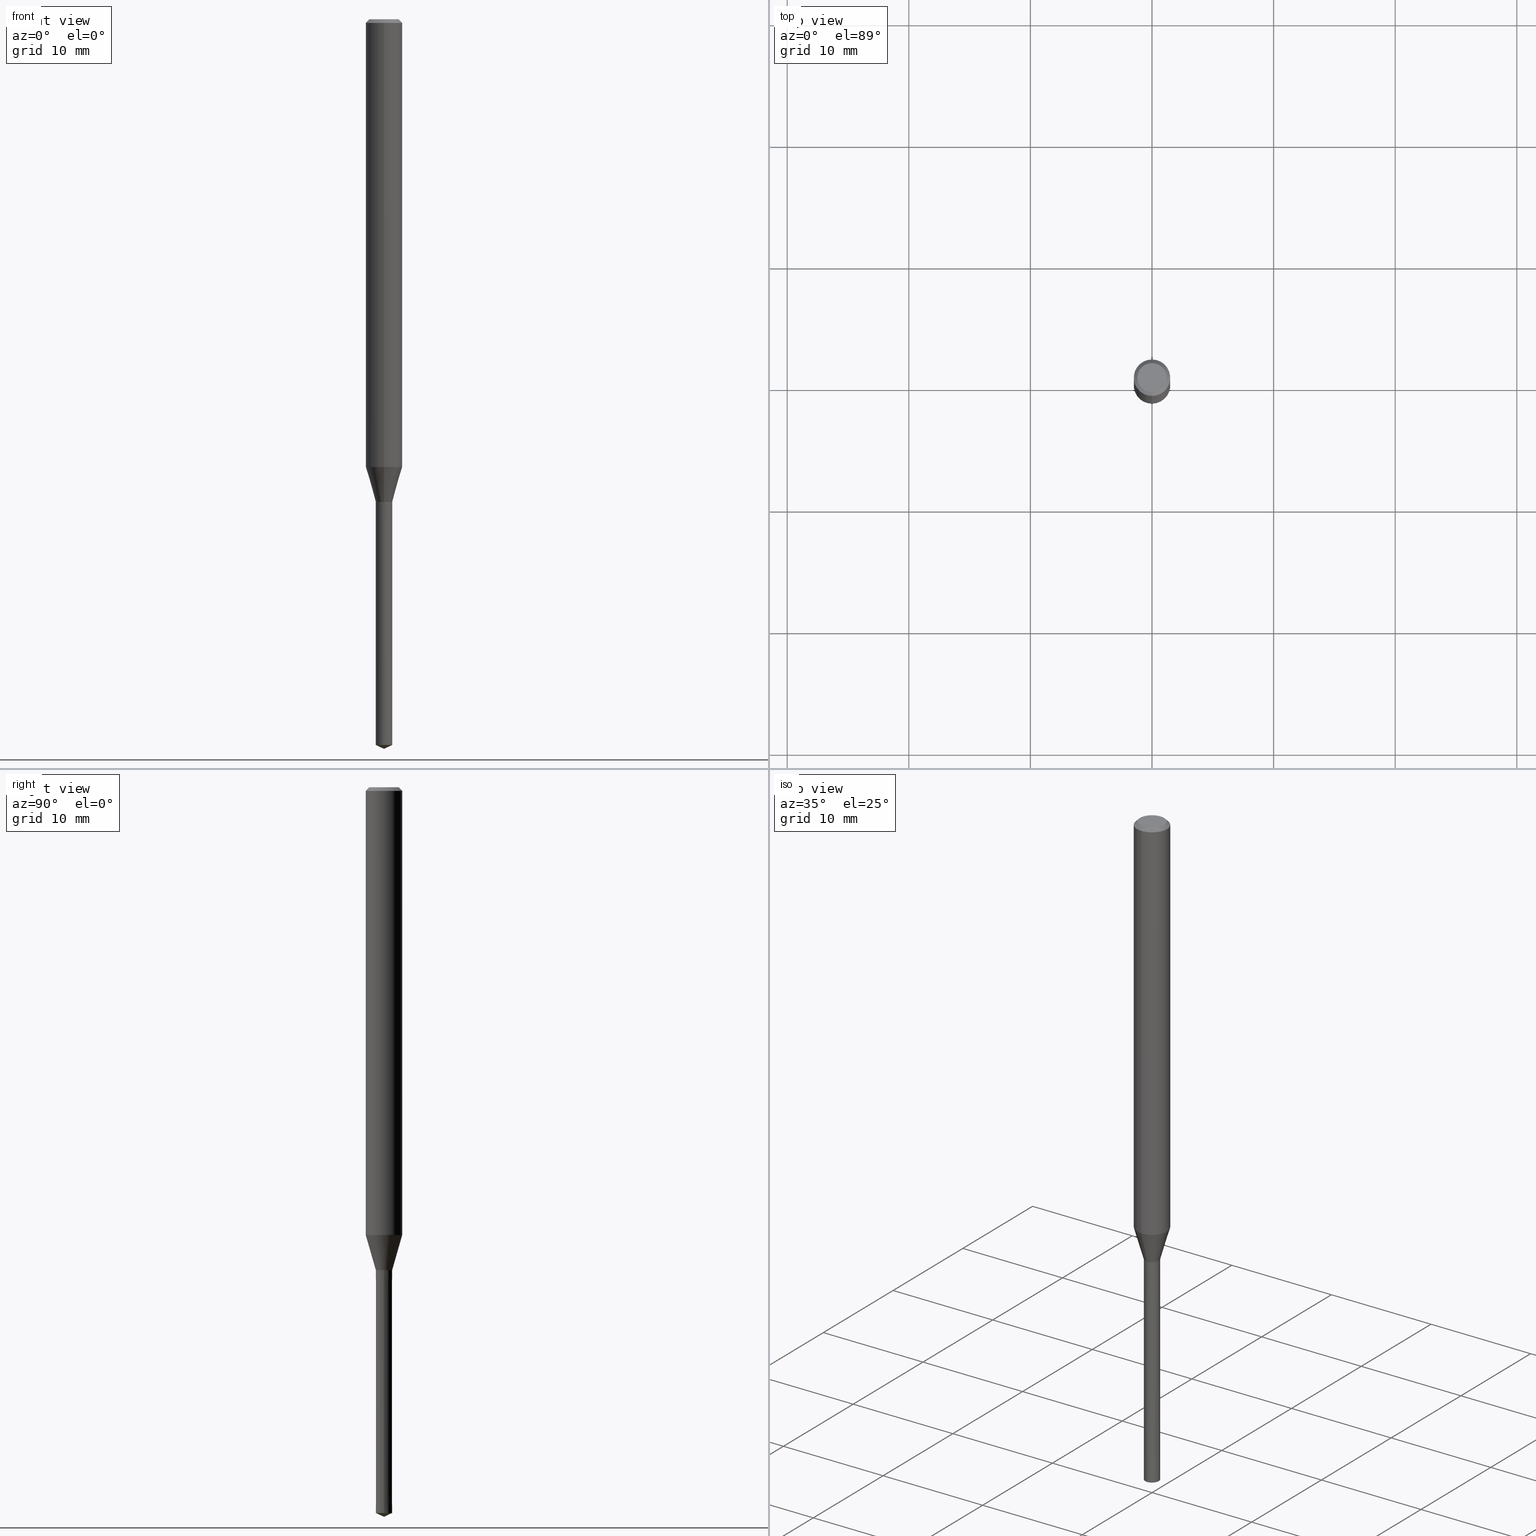
[diagram: canonical four-view strip — front | top / right | iso, engineering-drawing reading convention]
A machine part, canonical four-view strip (front | top / right | iso — engineering-drawing reading convention). The complete STEP part file that produces these views, byte-faithful:
ISO-10303-21;
HEADER;
FILE_DESCRIPTION(('no description'),'unknown implementation level');
FILE_NAME('UTDLX2135-203-Huellk.stp','  ',('CIMSOURCE GmbH'),('CADClick - KiM GmbH - www.kimweb.de'),'unknown preprocess','ACIS','unknown authorization');
FILE_SCHEMA(('automotive_design'));
ENDSEC;
DATA;
#1=MECHANICAL_DESIGN_GEOMETRIC_PRESENTATION_REPRESENTATION(' ',(#14,#15,#16,#17,#18,#19,#20,#21,#22,#23,#24,#25,#26,#27,#28,#29,#30,#31,#32,#33,#34,#35,#36,#37,#38,#39,#40,#41,#42,#43,#44,#45,#46,#47,#48,#49,#50,#51,#52,#53,#54,#55,#56,#57,#58,#59,#60,#61,#62,#63,#64,#65,#66,#67,#68,#69,#70,#71),#10);
#2=PRODUCT_DEFINITION_CONTEXT('',#72,'design');
#3=APPLICATION_PROTOCOL_DEFINITION('INTERNATIONAL STANDARD','automotive_design',1994,#72);
#4=PRODUCT_CATEGORY_RELATIONSHIP('NONE','NONE',#73,#74);
#5=SHAPE_DEFINITION_REPRESENTATION(#75,#76);
#6=PRODUCT_DEFINITION_CONTEXT('',#77,'design');
#7=APPLICATION_PROTOCOL_DEFINITION('INTERNATIONAL STANDARD','automotive_design',1994,#77);
#8=PRODUCT_CATEGORY_RELATIONSHIP('NONE','NONE',#78,#79);
#9=SHAPE_DEFINITION_REPRESENTATION(#80,#81);
#10= (GEOMETRIC_REPRESENTATION_CONTEXT(3)GLOBAL_UNCERTAINTY_ASSIGNED_CONTEXT((#84))GLOBAL_UNIT_ASSIGNED_CONTEXT((#86,#87,#88))REPRESENTATION_CONTEXT('NONE','WORKSPACE'));
#14=STYLED_ITEM('',(#90),#91);
#15=STYLED_ITEM('',(#92),#93);
#16=STYLED_ITEM('',(#94),#95);
#17=STYLED_ITEM('',(#96),#97);
#18=STYLED_ITEM('',(#98),#99);
#19=STYLED_ITEM('',(#100),#101);
#20=STYLED_ITEM('',(#102),#103);
#21=STYLED_ITEM('',(#104),#105);
#22=STYLED_ITEM('',(#106),#107);
#23=STYLED_ITEM('',(#108),#109);
#24=STYLED_ITEM('',(#110),#111);
#25=STYLED_ITEM('',(#112),#113);
#26=STYLED_ITEM('',(#114),#115);
#27=STYLED_ITEM('',(#116),#117);
#28=STYLED_ITEM('',(#118),#119);
#29=STYLED_ITEM('',(#120),#121);
#30=STYLED_ITEM('',(#122),#123);
#31=STYLED_ITEM('',(#124),#125);
#32=STYLED_ITEM('',(#126),#127);
#33=STYLED_ITEM('',(#128),#129);
#34=STYLED_ITEM('',(#130),#131);
#35=STYLED_ITEM('',(#132),#133);
#36=STYLED_ITEM('',(#134),#135);
#37=STYLED_ITEM('',(#136),#137);
#38=STYLED_ITEM('',(#138),#139);
#39=STYLED_ITEM('',(#140),#141);
#40=STYLED_ITEM('',(#142),#143);
#41=STYLED_ITEM('',(#144),#145);
#42=STYLED_ITEM('',(#146),#147);
#43=STYLED_ITEM('',(#148),#149);
#44=STYLED_ITEM('',(#150),#151);
#45=STYLED_ITEM('',(#152),#153);
#46=STYLED_ITEM('',(#154),#155);
#47=STYLED_ITEM('',(#156),#157);
#48=STYLED_ITEM('',(#158),#159);
#49=STYLED_ITEM('',(#160),#161);
#50=STYLED_ITEM('',(#162),#163);
#51=STYLED_ITEM('',(#164),#165);
#52=STYLED_ITEM('',(#166),#167);
#53=STYLED_ITEM('',(#168),#169);
#54=STYLED_ITEM('',(#170),#171);
#55=STYLED_ITEM('',(#172),#173);
#56=STYLED_ITEM('',(#174),#175);
#57=STYLED_ITEM('',(#176),#177);
#58=STYLED_ITEM('',(#178),#179);
#59=STYLED_ITEM('',(#180),#181);
#60=STYLED_ITEM('',(#182),#183);
#61=STYLED_ITEM('',(#184),#185);
#62=STYLED_ITEM('',(#186),#187);
#63=STYLED_ITEM('',(#188),#189);
#64=STYLED_ITEM('',(#190),#191);
#65=STYLED_ITEM('',(#192),#193);
#66=STYLED_ITEM('',(#194),#195);
#67=STYLED_ITEM('',(#196),#197);
#68=STYLED_ITEM('',(#198),#199);
#69=STYLED_ITEM('',(#200),#201);
#70=STYLED_ITEM('',(#202),#203);
#71=STYLED_ITEM('',(#204),#205);
#72=APPLICATION_CONTEXT(' ');
#73=PRODUCT_CATEGORY('part','NONE');
#74=PRODUCT_RELATED_PRODUCT_CATEGORY('detail',' ',(#206));
#75=PRODUCT_DEFINITION_SHAPE('NONE','NONE',#207);
#76=ADVANCED_BREP_SHAPE_REPRESENTATION('1',(#107,#208),#10);
#77=APPLICATION_CONTEXT(' ');
#78=PRODUCT_CATEGORY('part','NONE');
#79=PRODUCT_RELATED_PRODUCT_CATEGORY('detail',' ',(#209));
#80=PRODUCT_DEFINITION_SHAPE('NONE','NONE',#210);
#81=ADVANCED_BREP_SHAPE_REPRESENTATION('2',(#133,#211),#10);
#84=UNCERTAINTY_MEASURE_WITH_UNIT(LENGTH_MEASURE(1.0E-006),#86,'','');
#86= (CONVERSION_BASED_UNIT('MILLIMETRE',#214)LENGTH_UNIT()NAMED_UNIT(#217));
#87= (NAMED_UNIT(#219)PLANE_ANGLE_UNIT()SI_UNIT($,.RADIAN.));
#88= (NAMED_UNIT(#219)SOLID_ANGLE_UNIT()SI_UNIT($,.STERADIAN.));
#90=PRESENTATION_STYLE_ASSIGNMENT((#225));
#91=EDGE_CURVE('',#175,#119,#226,.T.);
#92=PRESENTATION_STYLE_ASSIGNMENT((#227));
#93=VERTEX_POINT('',#228);
#94=PRESENTATION_STYLE_ASSIGNMENT((#229));
#95=EDGE_CURVE('',#205,#111,#230,.T.);
#96=PRESENTATION_STYLE_ASSIGNMENT((#231));
#97=EDGE_CURVE('',#93,#183,#232,.T.);
#98=PRESENTATION_STYLE_ASSIGNMENT((#233));
#99=EDGE_CURVE('',#191,#113,#234,.T.);
#100=PRESENTATION_STYLE_ASSIGNMENT((#235));
#101=ADVANCED_FACE('',(#236),#237,.T.);
#102=PRESENTATION_STYLE_ASSIGNMENT((#238));
#103=EDGE_CURVE('',#185,#119,#239,.T.);
#104=PRESENTATION_STYLE_ASSIGNMENT((#240));
#105=ADVANCED_FACE('',(#241),#242,.T.);
#106=PRESENTATION_STYLE_ASSIGNMENT((#243));
#107=MANIFOLD_SOLID_BREP('1',#244);
#108=PRESENTATION_STYLE_ASSIGNMENT((#245));
#109=EDGE_CURVE('',#111,#205,#246,.T.);
#110=PRESENTATION_STYLE_ASSIGNMENT((#247));
#111=VERTEX_POINT('',#248);
#112=PRESENTATION_STYLE_ASSIGNMENT((#249));
#113=VERTEX_POINT('',#250);
#114=PRESENTATION_STYLE_ASSIGNMENT((#251));
#115=ADVANCED_FACE('',(#252),#253,.T.);
#116=PRESENTATION_STYLE_ASSIGNMENT((#254));
#117=ADVANCED_FACE('',(#255),#256,.T.);
#118=PRESENTATION_STYLE_ASSIGNMENT((#257));
#119=VERTEX_POINT('',#258);
#120=PRESENTATION_STYLE_ASSIGNMENT((#259));
#121=ADVANCED_FACE('',(#260),#261,.T.);
#122=PRESENTATION_STYLE_ASSIGNMENT((#262));
#123=ADVANCED_FACE('',(#263),#264,.T.);
#124=PRESENTATION_STYLE_ASSIGNMENT((#265));
#125=EDGE_CURVE('',#189,#185,#266,.T.);
#126=PRESENTATION_STYLE_ASSIGNMENT((#267));
#127=EDGE_CURVE('',#119,#175,#268,.T.);
#128=PRESENTATION_STYLE_ASSIGNMENT((#269));
#129=ADVANCED_FACE('',(#270),#271,.T.);
#130=PRESENTATION_STYLE_ASSIGNMENT((#272));
#131=VERTEX_POINT('',#273);
#132=PRESENTATION_STYLE_ASSIGNMENT((#274));
#133=MANIFOLD_SOLID_BREP('2',#275);
#134=PRESENTATION_STYLE_ASSIGNMENT((#276));
#135=ADVANCED_FACE('',(#277),#278,.T.);
#136=PRESENTATION_STYLE_ASSIGNMENT((#279));
#137=EDGE_CURVE('',#205,#175,#280,.T.);
#138=PRESENTATION_STYLE_ASSIGNMENT((#281));
#139=EDGE_CURVE('',#113,#185,#282,.T.);
#140=PRESENTATION_STYLE_ASSIGNMENT((#283));
#141=ADVANCED_FACE('',(#284),#285,.T.);
#142=PRESENTATION_STYLE_ASSIGNMENT((#286));
#143=EDGE_CURVE('',#171,#113,#287,.T.);
#144=PRESENTATION_STYLE_ASSIGNMENT((#288));
#145=EDGE_CURVE('',#113,#191,#289,.T.);
#146=PRESENTATION_STYLE_ASSIGNMENT((#290));
#147=EDGE_CURVE('',#159,#177,#291,.T.);
#148=PRESENTATION_STYLE_ASSIGNMENT((#292));
#149=EDGE_CURVE('',#183,#159,#293,.T.);
#150=PRESENTATION_STYLE_ASSIGNMENT((#294));
#151=EDGE_CURVE('',#159,#183,#295,.T.);
#152=PRESENTATION_STYLE_ASSIGNMENT((#296));
#153=ADVANCED_FACE('',(#297),#298,.T.);
#154=PRESENTATION_STYLE_ASSIGNMENT((#299));
#155=EDGE_CURVE('',#157,#171,#300,.T.);
#156=PRESENTATION_STYLE_ASSIGNMENT((#301));
#157=VERTEX_POINT('',#302);
#158=PRESENTATION_STYLE_ASSIGNMENT((#303));
#159=VERTEX_POINT('',#304);
#160=PRESENTATION_STYLE_ASSIGNMENT((#305));
#161=EDGE_CURVE('',#93,#177,#306,.T.);
#162=PRESENTATION_STYLE_ASSIGNMENT((#307));
#163=EDGE_CURVE('',#189,#191,#308,.T.);
#164=PRESENTATION_STYLE_ASSIGNMENT((#309));
#165=EDGE_CURVE('',#175,#189,#310,.T.);
#166=PRESENTATION_STYLE_ASSIGNMENT((#311));
#167=EDGE_CURVE('',#119,#111,#312,.T.);
#168=PRESENTATION_STYLE_ASSIGNMENT((#313));
#169=ADVANCED_FACE('',(#314),#315,.T.);
#170=PRESENTATION_STYLE_ASSIGNMENT((#316));
#171=VERTEX_POINT('',#317);
#172=PRESENTATION_STYLE_ASSIGNMENT((#318));
#173=EDGE_CURVE('',#131,#93,#319,.T.);
#174=PRESENTATION_STYLE_ASSIGNMENT((#320));
#175=VERTEX_POINT('',#321);
#176=PRESENTATION_STYLE_ASSIGNMENT((#322));
#177=VERTEX_POINT('',#323);
#178=PRESENTATION_STYLE_ASSIGNMENT((#324));
#179=EDGE_CURVE('',#191,#157,#325,.T.);
#180=PRESENTATION_STYLE_ASSIGNMENT((#326));
#181=EDGE_CURVE('',#177,#93,#327,.T.);
#182=PRESENTATION_STYLE_ASSIGNMENT((#328));
#183=VERTEX_POINT('',#329);
#184=PRESENTATION_STYLE_ASSIGNMENT((#330));
#185=VERTEX_POINT('',#331);
#186=PRESENTATION_STYLE_ASSIGNMENT((#332));
#187=EDGE_CURVE('',#177,#131,#333,.T.);
#188=PRESENTATION_STYLE_ASSIGNMENT((#334));
#189=VERTEX_POINT('',#335);
#190=PRESENTATION_STYLE_ASSIGNMENT((#336));
#191=VERTEX_POINT('',#337);
#192=PRESENTATION_STYLE_ASSIGNMENT((#338));
#193=ADVANCED_FACE('',(#339),#340,.T.);
#194=PRESENTATION_STYLE_ASSIGNMENT((#341));
#195=EDGE_CURVE('',#185,#189,#342,.T.);
#196=PRESENTATION_STYLE_ASSIGNMENT((#343));
#197=ADVANCED_FACE('',(#344),#345,.T.);
#198=PRESENTATION_STYLE_ASSIGNMENT((#346));
#199=ADVANCED_FACE('',(#347),#348,.T.);
#200=PRESENTATION_STYLE_ASSIGNMENT((#349));
#201=ADVANCED_FACE('',(#350),#351,.T.);
#202=PRESENTATION_STYLE_ASSIGNMENT((#352));
#203=EDGE_CURVE('',#171,#157,#353,.T.);
#204=PRESENTATION_STYLE_ASSIGNMENT((#354));
#205=VERTEX_POINT('',#355);
#206=PRODUCT('1','1','PART-1-DESC',(#356));
#207=PRODUCT_DEFINITION('NONE','NONE',#357,#2);
#208=AXIS2_PLACEMENT_3D('',#358,#359,#360);
#209=PRODUCT('2','2','PART-2-DESC',(#361));
#210=PRODUCT_DEFINITION('NONE','NONE',#362,#6);
#211=AXIS2_PLACEMENT_3D('',#363,#364,#365);
#214=LENGTH_MEASURE_WITH_UNIT(LENGTH_MEASURE(1.0),#366);
#217=DIMENSIONAL_EXPONENTS(1.0,0.0,0.0,0.0,0.0,0.0,0.0);
#219=DIMENSIONAL_EXPONENTS(0.0,0.0,0.0,0.0,0.0,0.0,0.0);
#225=CURVE_STYLE('',#367,POSITIVE_LENGTH_MEASURE(1.0E-006),#368);
#226=CIRCLE('',#369,0.675);
#227=POINT_STYLE(' ',#370,POSITIVE_LENGTH_MEASURE(1.0E-006),#371);
#228=CARTESIAN_POINT('',(0.675,8.26609288830105E-017,-59.68524233));
#229=CURVE_STYLE('',#372,POSITIVE_LENGTH_MEASURE(1.0E-006),#373);
#230=CIRCLE('',#374,0.6755);
#231=CURVE_STYLE('',#375,POSITIVE_LENGTH_MEASURE(1.0E-006),#376);
#232=LINE('',#377,#378);
#233=CURVE_STYLE('',#379,POSITIVE_LENGTH_MEASURE(1.0E-006),#380);
#234=CIRCLE('',#381,1.5);
#235=SURFACE_STYLE_USAGE(.BOTH.,#382);
#236=FACE_OUTER_BOUND('',#383,.T.);
#237=CONICAL_SURFACE('',#384,1.35,0.785398163397453);
#238=CURVE_STYLE('',#385,POSITIVE_LENGTH_MEASURE(1.0E-006),#386);
#239=LINE('',#387,#388);
#240=SURFACE_STYLE_USAGE(.BOTH.,#389);
#241=FACE_OUTER_BOUND('',#390,.T.);
#242=PLANE('',#391);
#243=SURFACE_STYLE_USAGE(.BOTH.,#392);
#244=CLOSED_SHELL('',(#197,#169,#199,#123,#105,#101,#141,#153,#201,#121));
#245=CURVE_STYLE('',#393,POSITIVE_LENGTH_MEASURE(1.0E-006),#394);
#246=CIRCLE('',#395,0.6755);
#247=POINT_STYLE(' ',#396,POSITIVE_LENGTH_MEASURE(1.0E-006),#397);
#248=CARTESIAN_POINT('',(0.0,0.6755,-39.7));
#249=POINT_STYLE(' ',#398,POSITIVE_LENGTH_MEASURE(1.0E-006),#399);
#250=CARTESIAN_POINT('',(0.0,1.5,-0.299999999999997));
#251=SURFACE_STYLE_USAGE(.BOTH.,#400);
#252=FACE_OUTER_BOUND('',#401,.T.);
#253=CONICAL_SURFACE('',#402,0.6755,5.00369213769467E-005);
#254=SURFACE_STYLE_USAGE(.BOTH.,#403);
#255=FACE_OUTER_BOUND('',#404,.T.);
#256=CONICAL_SURFACE('',#405,0.3375,1.13446401288928);
#257=POINT_STYLE(' ',#406,POSITIVE_LENGTH_MEASURE(1.0E-006),#407);
#258=CARTESIAN_POINT('',(0.0,0.675,-39.6991339745962));
#259=SURFACE_STYLE_USAGE(.BOTH.,#408);
#260=FACE_OUTER_BOUND('',#409,.T.);
#261=PLANE('',#410);
#262=SURFACE_STYLE_USAGE(.BOTH.,#411);
#263=FACE_OUTER_BOUND('',#412,.T.);
#264=CONICAL_SURFACE('',#413,1.35,0.785398163397453);
#265=CURVE_STYLE('',#414,POSITIVE_LENGTH_MEASURE(1.0E-006),#415);
#266=CIRCLE('',#416,1.5);
#267=CURVE_STYLE('',#417,POSITIVE_LENGTH_MEASURE(1.0E-006),#418);
#268=CIRCLE('',#419,0.675);
#269=SURFACE_STYLE_USAGE(.BOTH.,#420);
#270=FACE_OUTER_BOUND('',#421,.T.);
#271=CONICAL_SURFACE('',#422,0.6755,5.00369213769467E-005);
#272=POINT_STYLE(' ',#423,POSITIVE_LENGTH_MEASURE(1.0E-006),#424);
#273=CARTESIAN_POINT('',(0.0,0.0,-60.0));
#274=SURFACE_STYLE_USAGE(.BOTH.,#425);
#275=CLOSED_SHELL('',(#135,#129,#193,#115,#117));
#276=SURFACE_STYLE_USAGE(.BOTH.,#426);
#277=FACE_OUTER_BOUND('',#427,.T.);
#278=CONICAL_SURFACE('',#428,0.3375,1.13446401288928);
#279=CURVE_STYLE('',#429,POSITIVE_LENGTH_MEASURE(1.0E-006),#430);
#280=LINE('',#431,#432);
#281=CURVE_STYLE('',#433,POSITIVE_LENGTH_MEASURE(1.0E-006),#434);
#282=LINE('',#435,#436);
#283=SURFACE_STYLE_USAGE(.BOTH.,#437);
#284=FACE_OUTER_BOUND('',#438,.T.);
#285=CYLINDRICAL_SURFACE('',#439,1.5);
#286=CURVE_STYLE('',#440,POSITIVE_LENGTH_MEASURE(1.0E-006),#441);
#287=LINE('',#442,#443);
#288=CURVE_STYLE('',#444,POSITIVE_LENGTH_MEASURE(1.0E-006),#445);
#289=CIRCLE('',#446,1.5);
#290=CURVE_STYLE('',#447,POSITIVE_LENGTH_MEASURE(1.0E-006),#448);
#291=LINE('',#449,#450);
#292=CURVE_STYLE('',#451,POSITIVE_LENGTH_MEASURE(1.0E-006),#452);
#293=CIRCLE('',#453,0.676);
#294=CURVE_STYLE('',#454,POSITIVE_LENGTH_MEASURE(1.0E-006),#455);
#295=CIRCLE('',#456,0.676);
#296=SURFACE_STYLE_USAGE(.BOTH.,#457);
#297=FACE_OUTER_BOUND('',#458,.T.);
#298=CONICAL_SURFACE('',#459,1.0875,0.279343230021156);
#299=CURVE_STYLE('',#460,POSITIVE_LENGTH_MEASURE(1.0E-006),#461);
#300=CIRCLE('',#462,1.2);
#301=POINT_STYLE(' ',#463,POSITIVE_LENGTH_MEASURE(1.0E-006),#464);
#302=CARTESIAN_POINT('',(1.46952762458685E-016,-1.2,0.0));
#303=POINT_STYLE(' ',#465,POSITIVE_LENGTH_MEASURE(1.0E-006),#466);
#304=CARTESIAN_POINT('',(-0.676,0.0,-39.7));
#305=CURVE_STYLE('',#467,POSITIVE_LENGTH_MEASURE(1.0E-006),#468);
#306=CIRCLE('',#469,0.675);
#307=CURVE_STYLE('',#470,POSITIVE_LENGTH_MEASURE(1.0E-006),#471);
#308=LINE('',#472,#473);
#309=CURVE_STYLE('',#474,POSITIVE_LENGTH_MEASURE(1.0E-006),#475);
#310=LINE('',#476,#477);
#311=CURVE_STYLE('',#478,POSITIVE_LENGTH_MEASURE(1.0E-006),#479);
#312=LINE('',#480,#481);
#313=SURFACE_STYLE_USAGE(.BOTH.,#482);
#314=FACE_OUTER_BOUND('',#483,.T.);
#315=CONICAL_SURFACE('',#484,1.0875,0.279343230021156);
#316=POINT_STYLE(' ',#485,POSITIVE_LENGTH_MEASURE(1.0E-006),#486);
#317=CARTESIAN_POINT('',(0.0,1.2,0.0));
#318=CURVE_STYLE('',#487,POSITIVE_LENGTH_MEASURE(1.0E-006),#488);
#319=LINE('',#489,#490);
#320=POINT_STYLE(' ',#491,POSITIVE_LENGTH_MEASURE(1.0E-006),#492);
#321=CARTESIAN_POINT('',(8.26609288830105E-017,-0.675,-39.6991339745962));
#322=POINT_STYLE(' ',#493,POSITIVE_LENGTH_MEASURE(1.0E-006),#494);
#323=CARTESIAN_POINT('',(-0.675,0.0,-59.68524233));
#324=CURVE_STYLE('',#495,POSITIVE_LENGTH_MEASURE(1.0E-006),#496);
#325=LINE('',#497,#498);
#326=CURVE_STYLE('',#499,POSITIVE_LENGTH_MEASURE(1.0E-006),#500);
#327=CIRCLE('',#501,0.675);
#328=POINT_STYLE(' ',#502,POSITIVE_LENGTH_MEASURE(1.0E-006),#503);
#329=CARTESIAN_POINT('',(0.676,8.27833895183927E-017,-39.7));
#330=POINT_STYLE(' ',#504,POSITIVE_LENGTH_MEASURE(1.0E-006),#505);
#331=CARTESIAN_POINT('',(0.0,1.5,-36.823));
#332=CURVE_STYLE('',#506,POSITIVE_LENGTH_MEASURE(1.0E-006),#507);
#333=LINE('',#508,#509);
#334=POINT_STYLE(' ',#510,POSITIVE_LENGTH_MEASURE(1.0E-006),#511);
#335=CARTESIAN_POINT('',(1.83690953073357E-016,-1.5,-36.823));
#336=POINT_STYLE(' ',#512,POSITIVE_LENGTH_MEASURE(1.0E-006),#513);
#337=CARTESIAN_POINT('',(1.83690953073357E-016,-1.5,-0.299999999999997));
#338=SURFACE_STYLE_USAGE(.BOTH.,#514);
#339=FACE_OUTER_BOUND('',#515,.T.);
#340=PLANE('',#516);
#341=CURVE_STYLE('',#517,POSITIVE_LENGTH_MEASURE(1.0E-006),#518);
#342=CIRCLE('',#519,1.5);
#343=SURFACE_STYLE_USAGE(.BOTH.,#520);
#344=FACE_OUTER_BOUND('',#521,.T.);
#345=CONICAL_SURFACE('',#522,0.67525,0.52359877559836);
#346=SURFACE_STYLE_USAGE(.BOTH.,#523);
#347=FACE_OUTER_BOUND('',#524,.T.);
#348=CYLINDRICAL_SURFACE('',#525,1.5);
#349=SURFACE_STYLE_USAGE(.BOTH.,#526);
#350=FACE_OUTER_BOUND('',#527,.T.);
#351=CONICAL_SURFACE('',#528,0.67525,0.52359877559836);
#352=CURVE_STYLE('',#529,POSITIVE_LENGTH_MEASURE(1.0E-006),#530);
#353=CIRCLE('',#531,1.2);
#354=POINT_STYLE(' ',#532,POSITIVE_LENGTH_MEASURE(1.0E-006),#533);
#355=CARTESIAN_POINT('',(8.27221592007016E-017,-0.6755,-39.7));
#356=PRODUCT_CONTEXT('',#72,'mechanical');
#357=PRODUCT_DEFINITION_FORMATION_WITH_SPECIFIED_SOURCE(' ','NONE',#206,.NOT_KNOWN.);
#358=CARTESIAN_POINT('',(0.0,0.0,0.0));
#359=DIRECTION('',(0.0,0.0,1.0));
#360=DIRECTION('',(1.0,0.0,0.0));
#361=PRODUCT_CONTEXT('',#77,'mechanical');
#362=PRODUCT_DEFINITION_FORMATION_WITH_SPECIFIED_SOURCE(' ','NONE',#209,.NOT_KNOWN.);
#363=CARTESIAN_POINT('',(0.0,0.0,0.0));
#364=DIRECTION('',(0.0,0.0,1.0));
#365=DIRECTION('',(1.0,0.0,0.0));
#366= (NAMED_UNIT(#217)LENGTH_UNIT()SI_UNIT(.MILLI.,.METRE.));
#367=DRAUGHTING_PRE_DEFINED_CURVE_FONT('continuous');
#368=COLOUR_RGB('',0.498039215803146,0.498039215803146,0.498039215803146);
#369=AXIS2_PLACEMENT_3D('',#535,#536,#537);
#370=PRE_DEFINED_MARKER('');
#371=COLOUR_RGB('',0.800000011920929,0.800000011920929,0.800000011920929);
#372=DRAUGHTING_PRE_DEFINED_CURVE_FONT('continuous');
#373=COLOUR_RGB('',0.498039215803146,0.498039215803146,0.498039215803146);
#374=AXIS2_PLACEMENT_3D('',#538,#539,#540);
#375=DRAUGHTING_PRE_DEFINED_CURVE_FONT('continuous');
#376=COLOUR_RGB('',0.800000011920929,0.800000011920929,0.800000011920929);
#377=CARTESIAN_POINT('',(0.6755,8.27221592007016E-017,-49.692621165));
#378=VECTOR('',#541,1.0);
#379=DRAUGHTING_PRE_DEFINED_CURVE_FONT('continuous');
#380=COLOUR_RGB('',0.498039215803146,0.498039215803146,0.498039215803146);
#381=AXIS2_PLACEMENT_3D('',#542,#543,#544);
#382=SURFACE_SIDE_STYLE('',(#545));
#383=EDGE_LOOP('',(#546,#547,#548,#549));
#384=AXIS2_PLACEMENT_3D('',#550,#551,#552);
#385=DRAUGHTING_PRE_DEFINED_CURVE_FONT('continuous');
#386=COLOUR_RGB('',0.498039215803146,0.498039215803146,0.498039215803146);
#387=CARTESIAN_POINT('',(-1.33175940978184E-016,1.0875,-38.2610669872981));
#388=VECTOR('',#553,1.0);
#389=SURFACE_SIDE_STYLE('',(#554));
#390=EDGE_LOOP('',(#555,#556));
#391=AXIS2_PLACEMENT_3D('',#557,#558,#559);
#392=SURFACE_SIDE_STYLE('',(#560));
#393=DRAUGHTING_PRE_DEFINED_CURVE_FONT('continuous');
#394=COLOUR_RGB('',0.498039215803146,0.498039215803146,0.498039215803146);
#395=AXIS2_PLACEMENT_3D('',#561,#562,#563);
#396=PRE_DEFINED_MARKER('');
#397=COLOUR_RGB('',0.498039215803146,0.498039215803146,0.498039215803146);
#398=PRE_DEFINED_MARKER('');
#399=COLOUR_RGB('',0.498039215803146,0.498039215803146,0.498039215803146);
#400=SURFACE_SIDE_STYLE('',(#564));
#401=EDGE_LOOP('',(#565,#566,#567,#568));
#402=AXIS2_PLACEMENT_3D('',#569,#570,#571);
#403=SURFACE_SIDE_STYLE('',(#572));
#404=EDGE_LOOP('',(#573,#574,#575));
#405=AXIS2_PLACEMENT_3D('',#576,#577,#578);
#406=PRE_DEFINED_MARKER('');
#407=COLOUR_RGB('',0.498039215803146,0.498039215803146,0.498039215803146);
#408=SURFACE_SIDE_STYLE('',(#579));
#409=EDGE_LOOP('',(#580,#581));
#410=AXIS2_PLACEMENT_3D('',#582,#583,#584);
#411=SURFACE_SIDE_STYLE('',(#585));
#412=EDGE_LOOP('',(#586,#587,#588,#589));
#413=AXIS2_PLACEMENT_3D('',#590,#591,#592);
#414=DRAUGHTING_PRE_DEFINED_CURVE_FONT('continuous');
#415=COLOUR_RGB('',0.498039215803146,0.498039215803146,0.498039215803146);
#416=AXIS2_PLACEMENT_3D('',#593,#594,#595);
#417=DRAUGHTING_PRE_DEFINED_CURVE_FONT('continuous');
#418=COLOUR_RGB('',0.498039215803146,0.498039215803146,0.498039215803146);
#419=AXIS2_PLACEMENT_3D('',#596,#597,#598);
#420=SURFACE_SIDE_STYLE('',(#599));
#421=EDGE_LOOP('',(#600,#601,#602,#603));
#422=AXIS2_PLACEMENT_3D('',#604,#605,#606);
#423=PRE_DEFINED_MARKER('');
#424=COLOUR_RGB('',0.800000011920929,0.800000011920929,0.800000011920929);
#425=SURFACE_SIDE_STYLE('',(#607));
#426=SURFACE_SIDE_STYLE('',(#608));
#427=EDGE_LOOP('',(#609,#610,#611));
#428=AXIS2_PLACEMENT_3D('',#612,#613,#614);
#429=DRAUGHTING_PRE_DEFINED_CURVE_FONT('continuous');
#430=COLOUR_RGB('',0.498039215803146,0.498039215803146,0.498039215803146);
#431=CARTESIAN_POINT('',(8.2691544041856E-017,-0.67525,-39.6995669872981));
#432=VECTOR('',#615,1.0);
#433=DRAUGHTING_PRE_DEFINED_CURVE_FONT('continuous');
#434=COLOUR_RGB('',0.498039215803146,0.498039215803146,0.498039215803146);
#435=CARTESIAN_POINT('',(-1.83690953073357E-016,1.5,-18.5615));
#436=VECTOR('',#616,1.0);
#437=SURFACE_SIDE_STYLE('',(#617));
#438=EDGE_LOOP('',(#618,#619,#620,#621));
#439=AXIS2_PLACEMENT_3D('',#622,#623,#624);
#440=DRAUGHTING_PRE_DEFINED_CURVE_FONT('continuous');
#441=COLOUR_RGB('',0.498039215803146,0.498039215803146,0.498039215803146);
#442=CARTESIAN_POINT('',(-1.65321857766021E-016,1.35,-0.149999999999999));
#443=VECTOR('',#625,1.0);
#444=DRAUGHTING_PRE_DEFINED_CURVE_FONT('continuous');
#445=COLOUR_RGB('',0.498039215803146,0.498039215803146,0.498039215803146);
#446=AXIS2_PLACEMENT_3D('',#626,#627,#628);
#447=DRAUGHTING_PRE_DEFINED_CURVE_FONT('continuous');
#448=COLOUR_RGB('',0.800000011920929,0.800000011920929,0.800000011920929);
#449=CARTESIAN_POINT('',(-0.6755,-8.27221592007016E-017,-49.692621165));
#450=VECTOR('',#629,1.0);
#451=DRAUGHTING_PRE_DEFINED_CURVE_FONT('continuous');
#452=COLOUR_RGB('',0.800000011920929,0.800000011920929,0.800000011920929);
#453=AXIS2_PLACEMENT_3D('',#630,#631,#632);
#454=DRAUGHTING_PRE_DEFINED_CURVE_FONT('continuous');
#455=COLOUR_RGB('',0.800000011920929,0.800000011920929,0.800000011920929);
#456=AXIS2_PLACEMENT_3D('',#633,#634,#635);
#457=SURFACE_SIDE_STYLE('',(#636));
#458=EDGE_LOOP('',(#637,#638,#639,#640));
#459=AXIS2_PLACEMENT_3D('',#641,#642,#643);
#460=DRAUGHTING_PRE_DEFINED_CURVE_FONT('continuous');
#461=COLOUR_RGB('',0.498039215803146,0.498039215803146,0.498039215803146);
#462=AXIS2_PLACEMENT_3D('',#644,#645,#646);
#463=PRE_DEFINED_MARKER('');
#464=COLOUR_RGB('',0.498039215803146,0.498039215803146,0.498039215803146);
#465=PRE_DEFINED_MARKER('');
#466=COLOUR_RGB('',0.800000011920929,0.800000011920929,0.800000011920929);
#467=DRAUGHTING_PRE_DEFINED_CURVE_FONT('continuous');
#468=COLOUR_RGB('',0.800000011920929,0.800000011920929,0.800000011920929);
#469=AXIS2_PLACEMENT_3D('',#647,#648,#649);
#470=DRAUGHTING_PRE_DEFINED_CURVE_FONT('continuous');
#471=COLOUR_RGB('',0.498039215803146,0.498039215803146,0.498039215803146);
#472=CARTESIAN_POINT('',(1.83690953073357E-016,-1.5,-18.5615));
#473=VECTOR('',#650,1.0);
#474=DRAUGHTING_PRE_DEFINED_CURVE_FONT('continuous');
#475=COLOUR_RGB('',0.498039215803146,0.498039215803146,0.498039215803146);
#476=CARTESIAN_POINT('',(1.33175940978184E-016,-1.0875,-38.2610669872981));
#477=VECTOR('',#651,1.0);
#478=DRAUGHTING_PRE_DEFINED_CURVE_FONT('continuous');
#479=COLOUR_RGB('',0.498039215803146,0.498039215803146,0.498039215803146);
#480=CARTESIAN_POINT('',(-8.2691544041856E-017,0.67525,-39.6995669872981));
#481=VECTOR('',#652,1.0);
#482=SURFACE_SIDE_STYLE('',(#653));
#483=EDGE_LOOP('',(#654,#655,#656,#657));
#484=AXIS2_PLACEMENT_3D('',#658,#659,#660);
#485=PRE_DEFINED_MARKER('');
#486=COLOUR_RGB('',0.498039215803146,0.498039215803146,0.498039215803146);
#487=DRAUGHTING_PRE_DEFINED_CURVE_FONT('continuous');
#488=COLOUR_RGB('',0.800000011920929,0.800000011920929,0.800000011920929);
#489=CARTESIAN_POINT('',(0.3375,4.13304644415052E-017,-59.842621165));
#490=VECTOR('',#661,1.0);
#491=PRE_DEFINED_MARKER('');
#492=COLOUR_RGB('',0.498039215803146,0.498039215803146,0.498039215803146);
#493=PRE_DEFINED_MARKER('');
#494=COLOUR_RGB('',0.800000011920929,0.800000011920929,0.800000011920929);
#495=DRAUGHTING_PRE_DEFINED_CURVE_FONT('continuous');
#496=COLOUR_RGB('',0.498039215803146,0.498039215803146,0.498039215803146);
#497=CARTESIAN_POINT('',(1.65321857766021E-016,-1.35,-0.149999999999999));
#498=VECTOR('',#662,1.0);
#499=DRAUGHTING_PRE_DEFINED_CURVE_FONT('continuous');
#500=COLOUR_RGB('',0.800000011920929,0.800000011920929,0.800000011920929);
#501=AXIS2_PLACEMENT_3D('',#663,#664,#665);
#502=PRE_DEFINED_MARKER('');
#503=COLOUR_RGB('',0.800000011920929,0.800000011920929,0.800000011920929);
#504=PRE_DEFINED_MARKER('');
#505=COLOUR_RGB('',0.498039215803146,0.498039215803146,0.498039215803146);
#506=DRAUGHTING_PRE_DEFINED_CURVE_FONT('continuous');
#507=COLOUR_RGB('',0.800000011920929,0.800000011920929,0.800000011920929);
#508=CARTESIAN_POINT('',(-0.3375,-4.13304644415052E-017,-59.842621165));
#509=VECTOR('',#666,1.0);
#510=PRE_DEFINED_MARKER('');
#511=COLOUR_RGB('',0.498039215803146,0.498039215803146,0.498039215803146);
#512=PRE_DEFINED_MARKER('');
#513=COLOUR_RGB('',0.498039215803146,0.498039215803146,0.498039215803146);
#514=SURFACE_SIDE_STYLE('',(#667));
#515=EDGE_LOOP('',(#668,#669));
#516=AXIS2_PLACEMENT_3D('',#670,#671,#672);
#517=DRAUGHTING_PRE_DEFINED_CURVE_FONT('continuous');
#518=COLOUR_RGB('',0.498039215803146,0.498039215803146,0.498039215803146);
#519=AXIS2_PLACEMENT_3D('',#673,#674,#675);
#520=SURFACE_SIDE_STYLE('',(#676));
#521=EDGE_LOOP('',(#677,#678,#679,#680));
#522=AXIS2_PLACEMENT_3D('',#681,#682,#683);
#523=SURFACE_SIDE_STYLE('',(#684));
#524=EDGE_LOOP('',(#685,#686,#687,#688));
#525=AXIS2_PLACEMENT_3D('',#689,#690,#691);
#526=SURFACE_SIDE_STYLE('',(#692));
#527=EDGE_LOOP('',(#693,#694,#695,#696));
#528=AXIS2_PLACEMENT_3D('',#697,#698,#699);
#529=DRAUGHTING_PRE_DEFINED_CURVE_FONT('continuous');
#530=COLOUR_RGB('',0.498039215803146,0.498039215803146,0.498039215803146);
#531=AXIS2_PLACEMENT_3D('',#700,#701,#702);
#532=PRE_DEFINED_MARKER('');
#533=COLOUR_RGB('',0.498039215803146,0.498039215803146,0.498039215803146);
#535=CARTESIAN_POINT('',(0.0,0.0,-39.6991339745962));
#536=DIRECTION('',(0.0,0.0,-1.0));
#537=DIRECTION('',(0.0,1.0,0.0));
#538=CARTESIAN_POINT('',(0.0,0.0,-39.7));
#539=DIRECTION('',(0.0,0.0,-1.0));
#540=DIRECTION('',(0.0,1.0,0.0));
#541=DIRECTION('',(5.00369213560671E-005,6.12755318183504E-021,0.999999998748153));
#542=CARTESIAN_POINT('',(0.0,0.0,-0.299999999999997));
#543=DIRECTION('',(0.0,0.0,-1.0));
#544=DIRECTION('',(0.0,1.0,0.0));
#545=SURFACE_STYLE_FILL_AREA(#703);
#546=ORIENTED_EDGE('',*,*,#143,.T.);
#547=ORIENTED_EDGE('',*,*,#99,.F.);
#548=ORIENTED_EDGE('',*,*,#179,.T.);
#549=ORIENTED_EDGE('',*,*,#155,.T.);
#550=CARTESIAN_POINT('',(0.0,0.0,-0.149999999999999));
#551=DIRECTION('',(0.0,-0.0,-1.0));
#552=DIRECTION('',(0.0,1.0,0.0));
#553=DIRECTION('',(3.3765384803781E-017,-0.275724396647043,-0.961236733117094));
#554=SURFACE_STYLE_FILL_AREA(#704);
#555=ORIENTED_EDGE('',*,*,#203,.F.);
#556=ORIENTED_EDGE('',*,*,#155,.F.);
#557=CARTESIAN_POINT('',(0.0,0.6,0.0));
#558=DIRECTION('',(-0.0,0.0,1.0));
#559=DIRECTION('',(0.0,-1.0,0.0));
#560=SURFACE_STYLE_FILL_AREA(#705);
#561=CARTESIAN_POINT('',(0.0,0.0,-39.7));
#562=DIRECTION('',(0.0,0.0,-1.0));
#563=DIRECTION('',(0.0,1.0,0.0));
#564=SURFACE_STYLE_FILL_AREA(#706);
#565=ORIENTED_EDGE('',*,*,#147,.T.);
#566=ORIENTED_EDGE('',*,*,#161,.F.);
#567=ORIENTED_EDGE('',*,*,#97,.T.);
#568=ORIENTED_EDGE('',*,*,#149,.T.);
#569=CARTESIAN_POINT('',(0.0,0.0,-49.692621165));
#570=DIRECTION('',(-0.0,-0.0,1.0));
#571=DIRECTION('',(-1.0,0.0,0.0));
#572=SURFACE_STYLE_FILL_AREA(#707);
#573=ORIENTED_EDGE('',*,*,#173,.T.);
#574=ORIENTED_EDGE('',*,*,#161,.T.);
#575=ORIENTED_EDGE('',*,*,#187,.T.);
#576=CARTESIAN_POINT('',(0.0,0.0,-59.842621165));
#577=DIRECTION('',(-0.0,-0.0,1.0));
#578=DIRECTION('',(-1.0,0.0,0.0));
#579=SURFACE_STYLE_FILL_AREA(#708);
#580=ORIENTED_EDGE('',*,*,#109,.T.);
#581=ORIENTED_EDGE('',*,*,#95,.T.);
#582=CARTESIAN_POINT('',(0.0,0.33775,-39.7));
#583=DIRECTION('',(0.0,0.0,-1.0));
#584=DIRECTION('',(0.0,1.0,0.0));
#585=SURFACE_STYLE_FILL_AREA(#709);
#586=ORIENTED_EDGE('',*,*,#143,.F.);
#587=ORIENTED_EDGE('',*,*,#203,.T.);
#588=ORIENTED_EDGE('',*,*,#179,.F.);
#589=ORIENTED_EDGE('',*,*,#145,.F.);
#590=CARTESIAN_POINT('',(0.0,0.0,-0.149999999999999));
#591=DIRECTION('',(0.0,-0.0,-1.0));
#592=DIRECTION('',(0.0,1.0,0.0));
#593=CARTESIAN_POINT('',(0.0,0.0,-36.823));
#594=DIRECTION('',(0.0,0.0,-1.0));
#595=DIRECTION('',(0.0,1.0,0.0));
#596=CARTESIAN_POINT('',(0.0,0.0,-39.6991339745962));
#597=DIRECTION('',(0.0,0.0,-1.0));
#598=DIRECTION('',(0.0,1.0,0.0));
#599=SURFACE_STYLE_FILL_AREA(#710);
#600=ORIENTED_EDGE('',*,*,#147,.F.);
#601=ORIENTED_EDGE('',*,*,#151,.T.);
#602=ORIENTED_EDGE('',*,*,#97,.F.);
#603=ORIENTED_EDGE('',*,*,#181,.F.);
#604=CARTESIAN_POINT('',(0.0,0.0,-49.692621165));
#605=DIRECTION('',(-0.0,-0.0,1.0));
#606=DIRECTION('',(-1.0,0.0,0.0));
#607=SURFACE_STYLE_FILL_AREA(#711);
#608=SURFACE_STYLE_FILL_AREA(#712);
#609=ORIENTED_EDGE('',*,*,#173,.F.);
#610=ORIENTED_EDGE('',*,*,#187,.F.);
#611=ORIENTED_EDGE('',*,*,#181,.T.);
#612=CARTESIAN_POINT('',(0.0,0.0,-59.842621165));
#613=DIRECTION('',(-0.0,-0.0,1.0));
#614=DIRECTION('',(-1.0,0.0,0.0));
#615=DIRECTION('',(-6.12303176911251E-017,0.500000000000051,0.866025403784409));
#616=DIRECTION('',(0.0,0.0,-1.0));
#617=SURFACE_STYLE_FILL_AREA(#713);
#618=ORIENTED_EDGE('',*,*,#139,.T.);
#619=ORIENTED_EDGE('',*,*,#125,.F.);
#620=ORIENTED_EDGE('',*,*,#163,.T.);
#621=ORIENTED_EDGE('',*,*,#99,.T.);
#622=CARTESIAN_POINT('',(0.0,0.0,-18.5615));
#623=DIRECTION('',(-0.0,-0.0,1.0));
#624=DIRECTION('',(0.0,1.0,0.0));
#625=DIRECTION('',(-8.65927457071939E-017,0.707106781186551,-0.707106781186544));
#626=CARTESIAN_POINT('',(0.0,0.0,-0.299999999999997));
#627=DIRECTION('',(0.0,0.0,-1.0));
#628=DIRECTION('',(0.0,1.0,0.0));
#629=DIRECTION('',(5.00369213560671E-005,6.12755318183504E-021,-0.999999998748153));
#630=CARTESIAN_POINT('',(0.0,0.0,-39.7));
#631=DIRECTION('',(0.0,0.0,-1.0));
#632=DIRECTION('',(-1.0,0.0,0.0));
#633=CARTESIAN_POINT('',(0.0,0.0,-39.7));
#634=DIRECTION('',(0.0,0.0,-1.0));
#635=DIRECTION('',(-1.0,0.0,0.0));
#636=SURFACE_STYLE_FILL_AREA(#714);
#637=ORIENTED_EDGE('',*,*,#103,.T.);
#638=ORIENTED_EDGE('',*,*,#91,.F.);
#639=ORIENTED_EDGE('',*,*,#165,.T.);
#640=ORIENTED_EDGE('',*,*,#125,.T.);
#641=CARTESIAN_POINT('',(0.0,0.0,-38.2610669872981));
#642=DIRECTION('',(-0.0,-0.0,1.0));
#643=DIRECTION('',(0.0,1.0,0.0));
#644=CARTESIAN_POINT('',(0.0,0.0,0.0));
#645=DIRECTION('',(0.0,0.0,-1.0));
#646=DIRECTION('',(0.0,1.0,0.0));
#647=CARTESIAN_POINT('',(0.0,0.0,-59.68524233));
#648=DIRECTION('',(0.0,0.0,-1.0));
#649=DIRECTION('',(-1.0,0.0,0.0));
#650=DIRECTION('',(-0.0,-0.0,1.0));
#651=DIRECTION('',(3.3765384803781E-017,-0.275724396647043,0.961236733117094));
#652=DIRECTION('',(-6.12303176911251E-017,0.500000000000051,-0.866025403784409));
#653=SURFACE_STYLE_FILL_AREA(#715);
#654=ORIENTED_EDGE('',*,*,#103,.F.);
#655=ORIENTED_EDGE('',*,*,#195,.T.);
#656=ORIENTED_EDGE('',*,*,#165,.F.);
#657=ORIENTED_EDGE('',*,*,#127,.F.);
#658=CARTESIAN_POINT('',(0.0,0.0,-38.2610669872981));
#659=DIRECTION('',(-0.0,-0.0,1.0));
#660=DIRECTION('',(0.0,1.0,0.0));
#661=DIRECTION('',(0.906307786653322,1.10987027405435E-016,0.422618262562749));
#662=DIRECTION('',(-8.65927457071939E-017,0.707106781186551,0.707106781186544));
#663=CARTESIAN_POINT('',(0.0,0.0,-59.68524233));
#664=DIRECTION('',(0.0,0.0,-1.0));
#665=DIRECTION('',(-1.0,0.0,0.0));
#666=DIRECTION('',(0.906307786653322,1.10987027405435E-016,-0.422618262562749));
#667=SURFACE_STYLE_FILL_AREA(#716);
#668=ORIENTED_EDGE('',*,*,#151,.F.);
#669=ORIENTED_EDGE('',*,*,#149,.F.);
#670=CARTESIAN_POINT('',(-0.338,0.0,-39.7));
#671=DIRECTION('',(0.0,0.0,1.0));
#672=DIRECTION('',(1.0,0.0,0.0));
#673=CARTESIAN_POINT('',(0.0,0.0,-36.823));
#674=DIRECTION('',(0.0,0.0,-1.0));
#675=DIRECTION('',(0.0,1.0,0.0));
#676=SURFACE_STYLE_FILL_AREA(#717);
#677=ORIENTED_EDGE('',*,*,#167,.F.);
#678=ORIENTED_EDGE('',*,*,#127,.T.);
#679=ORIENTED_EDGE('',*,*,#137,.F.);
#680=ORIENTED_EDGE('',*,*,#109,.F.);
#681=CARTESIAN_POINT('',(0.0,0.0,-39.6995669872981));
#682=DIRECTION('',(0.0,-0.0,-1.0));
#683=DIRECTION('',(0.0,1.0,0.0));
#684=SURFACE_STYLE_FILL_AREA(#718);
#685=ORIENTED_EDGE('',*,*,#139,.F.);
#686=ORIENTED_EDGE('',*,*,#145,.T.);
#687=ORIENTED_EDGE('',*,*,#163,.F.);
#688=ORIENTED_EDGE('',*,*,#195,.F.);
#689=CARTESIAN_POINT('',(0.0,0.0,-18.5615));
#690=DIRECTION('',(-0.0,-0.0,1.0));
#691=DIRECTION('',(0.0,1.0,0.0));
#692=SURFACE_STYLE_FILL_AREA(#719);
#693=ORIENTED_EDGE('',*,*,#167,.T.);
#694=ORIENTED_EDGE('',*,*,#95,.F.);
#695=ORIENTED_EDGE('',*,*,#137,.T.);
#696=ORIENTED_EDGE('',*,*,#91,.T.);
#697=CARTESIAN_POINT('',(0.0,0.0,-39.6995669872981));
#698=DIRECTION('',(0.0,-0.0,-1.0));
#699=DIRECTION('',(0.0,1.0,0.0));
#700=CARTESIAN_POINT('',(0.0,0.0,0.0));
#701=DIRECTION('',(0.0,0.0,-1.0));
#702=DIRECTION('',(0.0,1.0,0.0));
#703=FILL_AREA_STYLE('',(#720));
#704=FILL_AREA_STYLE('',(#721));
#705=FILL_AREA_STYLE('',(#722));
#706=FILL_AREA_STYLE('',(#723));
#707=FILL_AREA_STYLE('',(#724));
#708=FILL_AREA_STYLE('',(#725));
#709=FILL_AREA_STYLE('',(#726));
#710=FILL_AREA_STYLE('',(#727));
#711=FILL_AREA_STYLE('',(#728));
#712=FILL_AREA_STYLE('',(#729));
#713=FILL_AREA_STYLE('',(#730));
#714=FILL_AREA_STYLE('',(#731));
#715=FILL_AREA_STYLE('',(#732));
#716=FILL_AREA_STYLE('',(#733));
#717=FILL_AREA_STYLE('',(#734));
#718=FILL_AREA_STYLE('',(#735));
#719=FILL_AREA_STYLE('',(#736));
#720=FILL_AREA_STYLE_COLOUR('',#737);
#721=FILL_AREA_STYLE_COLOUR('',#738);
#722=FILL_AREA_STYLE_COLOUR('',#739);
#723=FILL_AREA_STYLE_COLOUR('',#740);
#724=FILL_AREA_STYLE_COLOUR('',#741);
#725=FILL_AREA_STYLE_COLOUR('',#742);
#726=FILL_AREA_STYLE_COLOUR('',#743);
#727=FILL_AREA_STYLE_COLOUR('',#744);
#728=FILL_AREA_STYLE_COLOUR('',#745);
#729=FILL_AREA_STYLE_COLOUR('',#746);
#730=FILL_AREA_STYLE_COLOUR('',#747);
#731=FILL_AREA_STYLE_COLOUR('',#748);
#732=FILL_AREA_STYLE_COLOUR('',#749);
#733=FILL_AREA_STYLE_COLOUR('',#750);
#734=FILL_AREA_STYLE_COLOUR('',#751);
#735=FILL_AREA_STYLE_COLOUR('',#752);
#736=FILL_AREA_STYLE_COLOUR('',#753);
#737=COLOUR_RGB('',0.498039215803146,0.498039215803146,0.498039215803146);
#738=COLOUR_RGB('',0.498039215803146,0.498039215803146,0.498039215803146);
#739=COLOUR_RGB('',0.498039215803146,0.498039215803146,0.498039215803146);
#740=COLOUR_RGB('',0.800000011920929,0.800000011920929,0.800000011920929);
#741=COLOUR_RGB('',0.800000011920929,0.800000011920929,0.800000011920929);
#742=COLOUR_RGB('',0.498039215803146,0.498039215803146,0.498039215803146);
#743=COLOUR_RGB('',0.498039215803146,0.498039215803146,0.498039215803146);
#744=COLOUR_RGB('',0.800000011920929,0.800000011920929,0.800000011920929);
#745=COLOUR_RGB('',0.800000011920929,0.800000011920929,0.800000011920929);
#746=COLOUR_RGB('',0.800000011920929,0.800000011920929,0.800000011920929);
#747=COLOUR_RGB('',0.498039215803146,0.498039215803146,0.498039215803146);
#748=COLOUR_RGB('',0.498039215803146,0.498039215803146,0.498039215803146);
#749=COLOUR_RGB('',0.498039215803146,0.498039215803146,0.498039215803146);
#750=COLOUR_RGB('',0.800000011920929,0.800000011920929,0.800000011920929);
#751=COLOUR_RGB('',0.498039215803146,0.498039215803146,0.498039215803146);
#752=COLOUR_RGB('',0.498039215803146,0.498039215803146,0.498039215803146);
#753=COLOUR_RGB('',0.498039215803146,0.498039215803146,0.498039215803146);
#754=AXIS2_PLACEMENT_3D('PCS',#755,#756,#757);
#755=CARTESIAN_POINT('',(0.0,0.0,0.0));
#756=DIRECTION('',(0.0,0.0,1.0));
#757=DIRECTION('',(1.0,0.0,0.0));
#758=AXIS2_PLACEMENT_3D('CIP',#759,#760,#761);
#759=CARTESIAN_POINT('',(0.0,0.0,-60.0));
#760=DIRECTION('',(0.0,0.0,1.0));
#761=DIRECTION('',(1.0,0.0,0.0));
#762=AXIS2_PLACEMENT_3D('CRP',#763,#764,#765);
#763=CARTESIAN_POINT('',(-0.675,0.0,-59.6852));
#764=DIRECTION('',(0.0,0.0,1.0));
#765=DIRECTION('',(1.0,0.0,0.0));
#766=AXIS2_PLACEMENT_3D('MCS',#767,#768,#769);
#767=CARTESIAN_POINT('',(0.0,0.0,-36.823));
#768=DIRECTION('',(0.0,0.0,1.0));
#769=DIRECTION('',(1.0,0.0,0.0));
#770=CONSTRUCTIVE_GEOMETRY_REPRESENTATION_RELATIONSHIP('coordinate systems',$,#76,#771);
#771=CONSTRUCTIVE_GEOMETRY_REPRESENTATION('coordinate systems',(#754,#758,#762,#766),#10);
ENDSEC;
END-ISO-10303-21;
